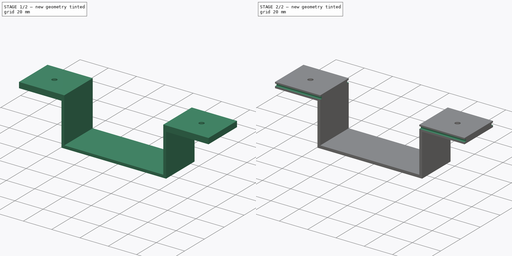
[diagram: build sequence overview — one tinted view per stage of 2, left to right]
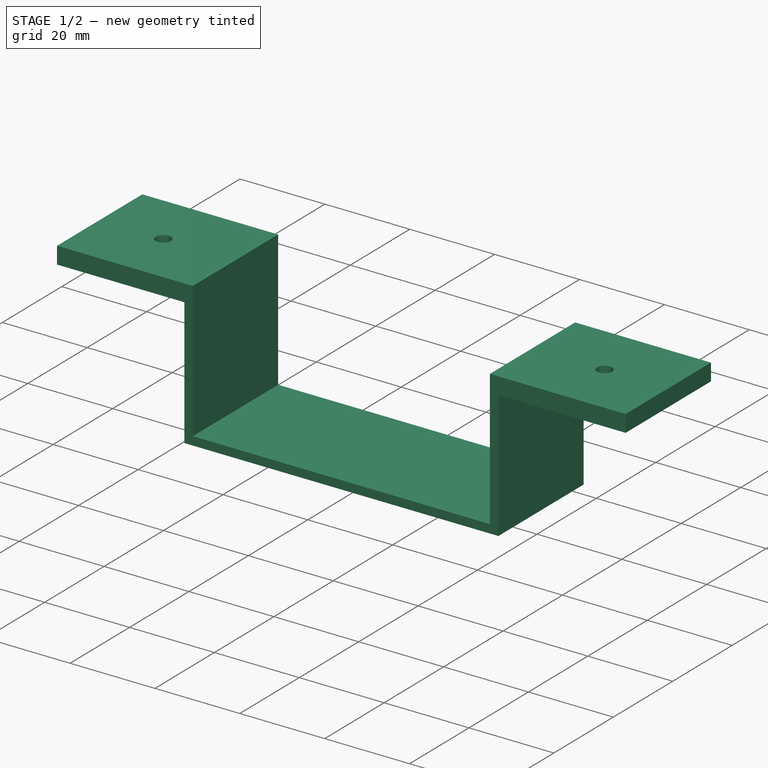
[diagram: stage 1 of 2 — iso view after this stage's code; geometry added in this stage tinted green]
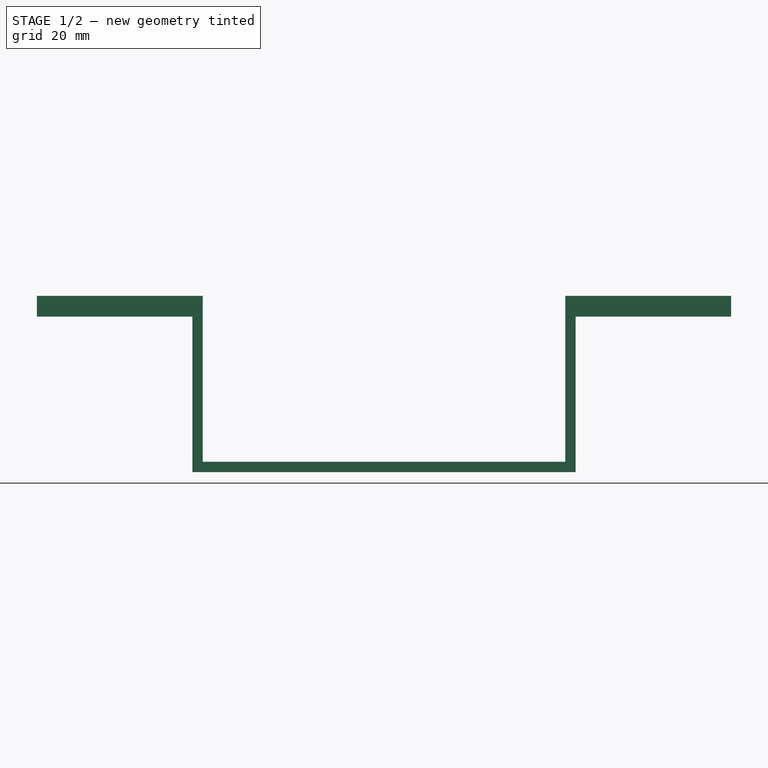
[diagram: stage 1 of 2 — front view after this stage's code; geometry added in this stage tinted green]
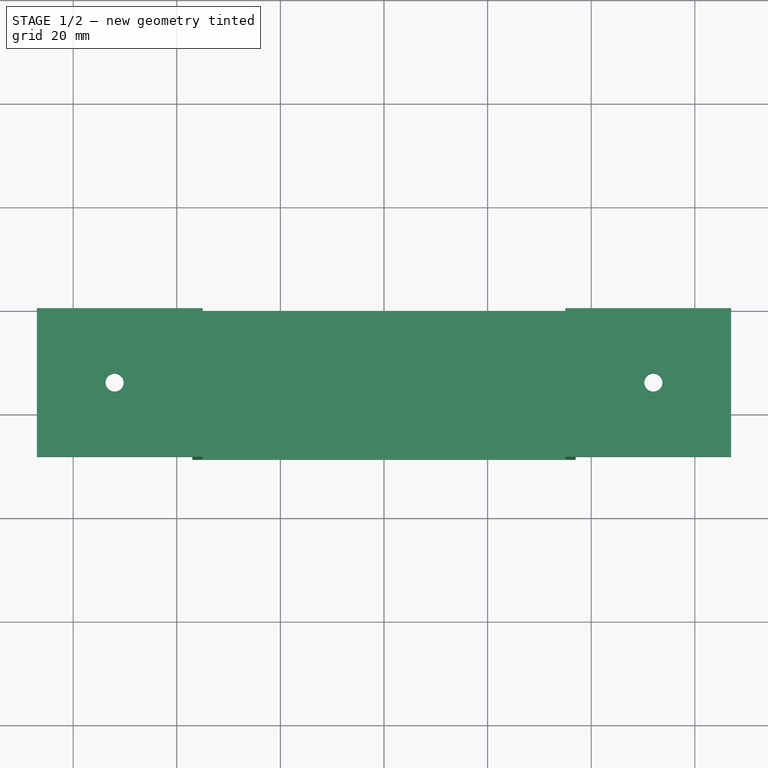
[diagram: stage 1 of 2 — top view after this stage's code; geometry added in this stage tinted green]
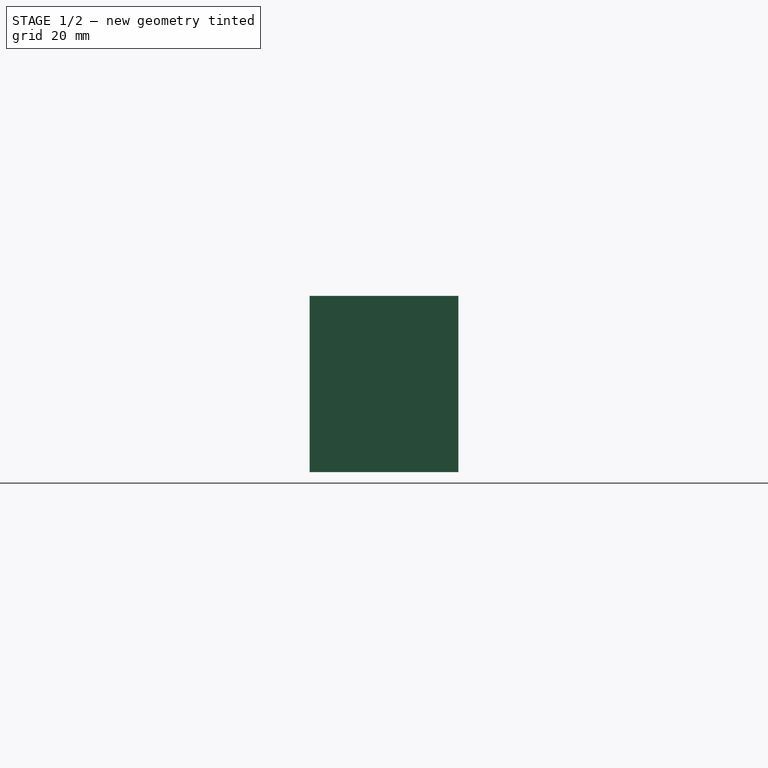
[diagram: stage 1 of 2 — right view after this stage's code; geometry added in this stage tinted green]
FCSTD DOCUMENT  (FreeCAD 1.0R39319 (Git))
Label: Temp controller bracket
License: All rights reserved
objects: Sketcher::SketchObject×3, PartDesign::Pocket×2, PartDesign::Pad×1, PartDesign::Body×1
note: 16 computed .brp shape members not serialized (recipe doc carries the construction recipe); baked Part::Feature solids carry a one-line shape summary decoded from their .brp

FEATURE [Sketcher::SketchObject] Sketch
  ArcFitTolerance = 1e-06
  AttachmentSupport = -> [XZ_Plane]
  FullyConstrained = true
  MakeInternals = false
  MapMode = 5
  Placement = pos=(0,0,0) rot=(1,0,0;1.5708rad)
  sketch-geometry (15):
    g0: LineSegment StartX=-67 StartY=0 StartZ=0 EndX=-35 EndY=0 EndZ=0
    g1: LineSegment StartX=-35 StartY=0 StartZ=0 EndX=-35 EndY=-32 EndZ=0
    g2: LineSegment StartX=-35 StartY=-32 StartZ=0 EndX=35 EndY=-32 EndZ=0
    g3: LineSegment StartX=35 StartY=-32 StartZ=0 EndX=35 EndY=0 EndZ=0
    g4: LineSegment StartX=35 StartY=0 StartZ=0 EndX=67 EndY=0 EndZ=0
    g5: LineSegment StartX=67 StartY=0 StartZ=0 EndX=67 EndY=-4 EndZ=0
    g6: LineSegment StartX=67 StartY=-4 StartZ=0 EndX=37 EndY=-4 EndZ=0
    g7: LineSegment StartX=37 StartY=-4 StartZ=0 EndX=37 EndY=-34 EndZ=0
    g8: LineSegment StartX=37 StartY=-34 StartZ=0 EndX=-37 EndY=-34 EndZ=0
    g9: LineSegment StartX=-37 StartY=-34 StartZ=0 EndX=-37 EndY=-4 EndZ=0
    g10: LineSegment StartX=-37 StartY=-4 StartZ=0 EndX=-67 EndY=-4 EndZ=0
    g11: LineSegment StartX=-67 StartY=-4 StartZ=0 EndX=-67 EndY=0 EndZ=0
    g12: LineSegment [constr] StartX=-37 StartY=-4 StartZ=0 EndX=-35 EndY=-4 EndZ=0
    g13: LineSegment [constr] StartX=37 StartY=-4 StartZ=0 EndX=35 EndY=-4 EndZ=0
    g14: LineSegment [constr] StartX=-35 StartY=-32 StartZ=0 EndX=-35 EndY=-34 EndZ=0
  constraints (44):
    c: PointOnObject(g0,g-1)
    c: PointOnObject(g0,g-1)
    c: Coincident(g0,g1)
    c: Vertical(g1)
    c: Coincident(g1,g2)
    c: Horizontal(g2)
    c: Coincident(g2,g3)
    c: Vertical(g3)
    c: Coincident(g3,g4)
    c: PointOnObject(g4,g-1)
    c: Coincident(g4,g5)
    c: Vertical(g5)
    c: Coincident(g5,g6)
    c: Horizontal(g6)
    c: Coincident(g6,g7)
    c: Vertical(g7)
    c: Coincident(g7,g8)
    c: Horizontal(g8)
    c: Coincident(g8,g9)
    c: Vertical(g9)
    c: Coincident(g9,g10)
    c: Coincident(g10,g11)
    c: Coincident(g11,g0)
    c: Horizontal(g10)
    c: Vertical(g11)
    c: Symmetric(g3,g0,g-2)
    c: Equal(g0,g4)
    c: Equal(g10,g6)
    c: Coincident(g12,g9)
    c: PointOnObject(g12,g1)
    c: Horizontal(g12)
    c: Coincident(g13,g6)
    c: PointOnObject(g13,g3)
    c: Horizontal(g13)
    c: Distance(g5) = 4
    c: Distance(g2) = 70
    c: Distance(g3) = 32
    c: Coincident(g14,g1)
    c: PointOnObject(g14,g8)
    c: Vertical(g14)
    c: Equal(g12,g14)
    c: Equal(g5,g11)
    c: Distance(g12) = 2
    c: Distance(g6) = 30
FEATURE [PartDesign::Pad] Pad
  Direction = (0,-1,2e-16)
  Length = 28.7
  Length2 = 10
  Placement = pos=(0,0,0) rot=(1,0,0;1.5708rad)
  Profile = -> Sketch
  ReferenceAxis = -> Sketch [N_Axis]
  Refine = true
  Suppressed = false
  Type = 0
FEATURE [Sketcher::SketchObject] Sketch001
  ArcFitTolerance = 1e-06
  AttachmentSupport = -> [Pad]
  ExternalGeometry = -> [Pad]
  FullyConstrained = true
  MakeInternals = false
  MapMode = 5
  Placement = pos=(0,-9e-16,-4) rot=(1,0,0;3.14159rad)
  sketch-geometry (6):
    g0: LineSegment [constr] StartX=-67 StartY=28.7 StartZ=0 EndX=-37 EndY=7e-16 EndZ=0
    g1: LineSegment [constr] StartX=-37 StartY=28.7 StartZ=0 EndX=-67 EndY=7e-16 EndZ=0
    g2: LineSegment [constr] StartX=37 StartY=28.7 StartZ=0 EndX=67 EndY=7e-16 EndZ=0
    g3: LineSegment [constr] StartX=67 StartY=28.7 StartZ=0 EndX=37 EndY=7e-16 EndZ=0
    g4: Circle CenterX=-52 CenterY=14.35 CenterZ=0 NormalX=0 NormalY=0 NormalZ=1 AngleXU=0 Radius=1.75
    g5: Circle CenterX=52 CenterY=14.35 CenterZ=0 NormalX=0 NormalY=0 NormalZ=1 AngleXU=0 Radius=1.75
  constraints (14):
    c: Coincident(g0,g-5)
    c: Coincident(g0,g-6)
    c: Coincident(g1,g-5)
    c: Coincident(g1,g-6)
    c: Coincident(g2,g-3)
    c: Coincident(g2,g-4)
    c: Coincident(g3,g-3)
    c: Coincident(g3,g-4)
    c: Equal(g5,g4)
    c: Diameter(g5) = 3.5
    c: PointOnObject(g5,g2)
    c: PointOnObject(g5,g3)
    c: PointOnObject(g4,g1)
    c: PointOnObject(g4,g0)
FEATURE [PartDesign::Pocket] Pocket
  BaseFeature = -> Pad
  Direction = (0,0,1)
  Length = 5
  Length2 = 5
  Placement = pos=(0,0,0) rot=(1,0,0;1.5708rad)
  Profile = -> Sketch001
  ReferenceAxis = -> Sketch001 [N_Axis]
  Refine = true
  Suppressed = false
  Type = 1
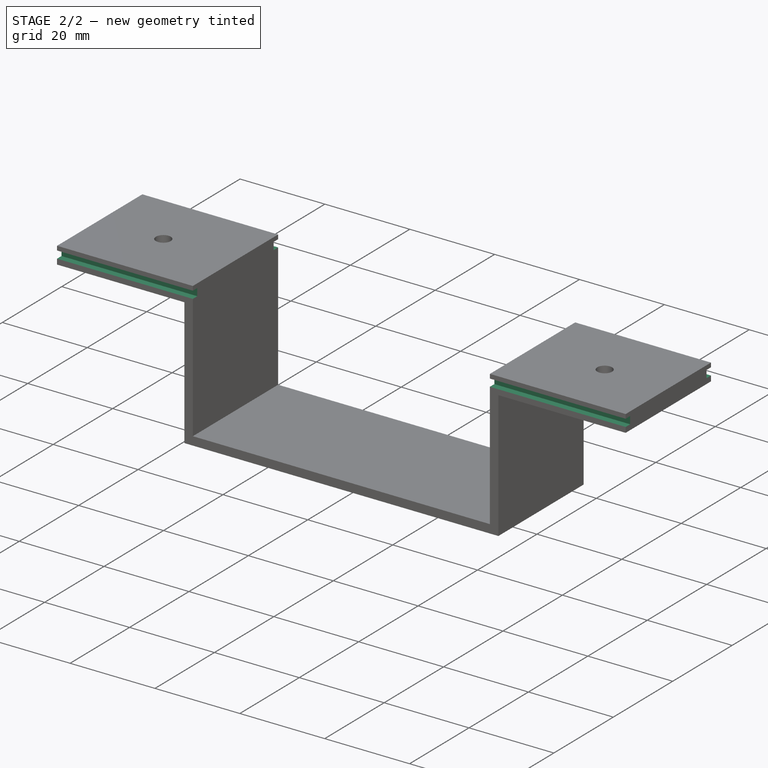
[diagram: stage 2 of 2 — iso view after this stage's code; geometry added in this stage tinted green]
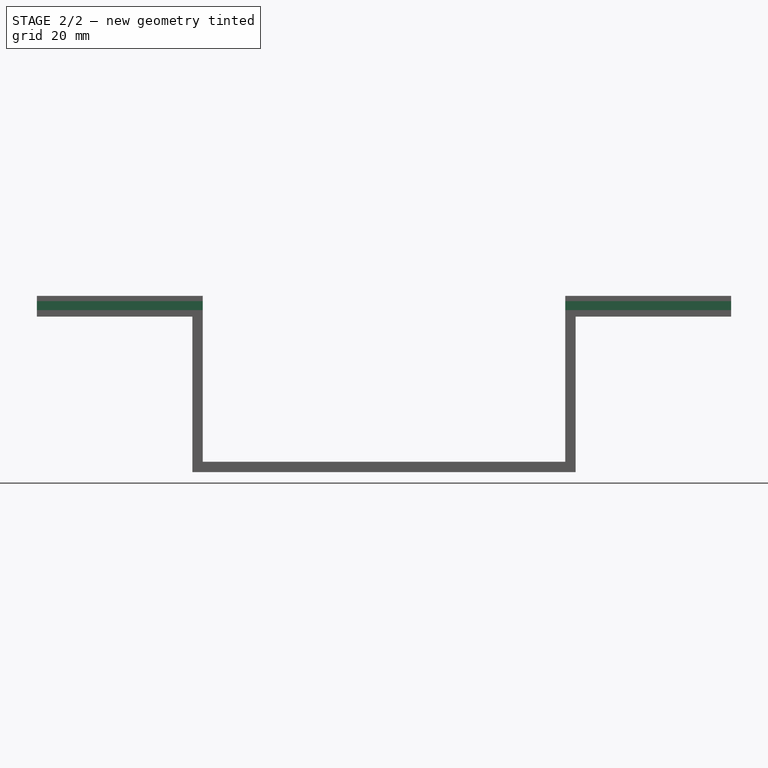
[diagram: stage 2 of 2 — front view after this stage's code; geometry added in this stage tinted green]
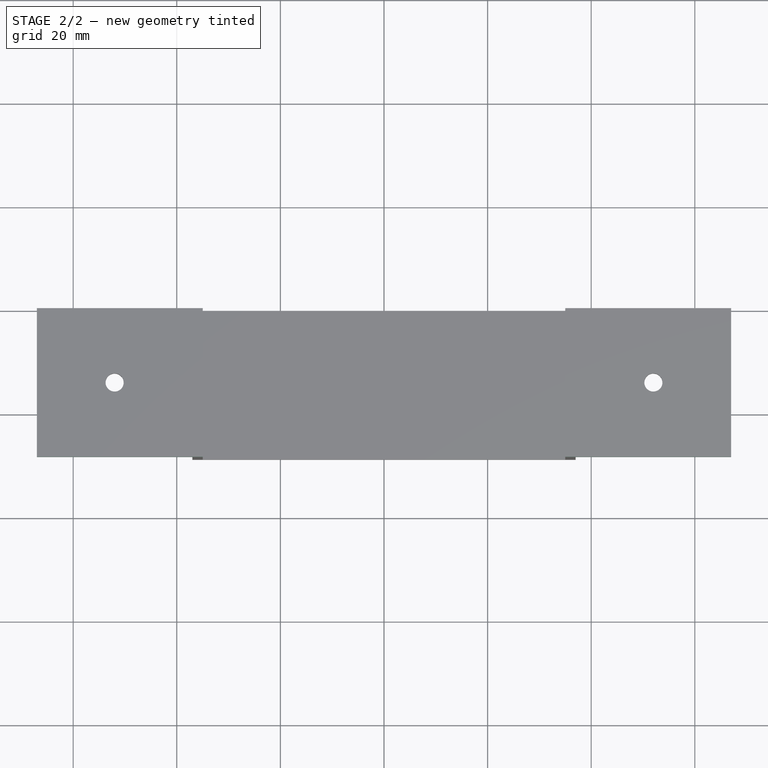
[diagram: stage 2 of 2 — top view after this stage's code; geometry added in this stage tinted green]
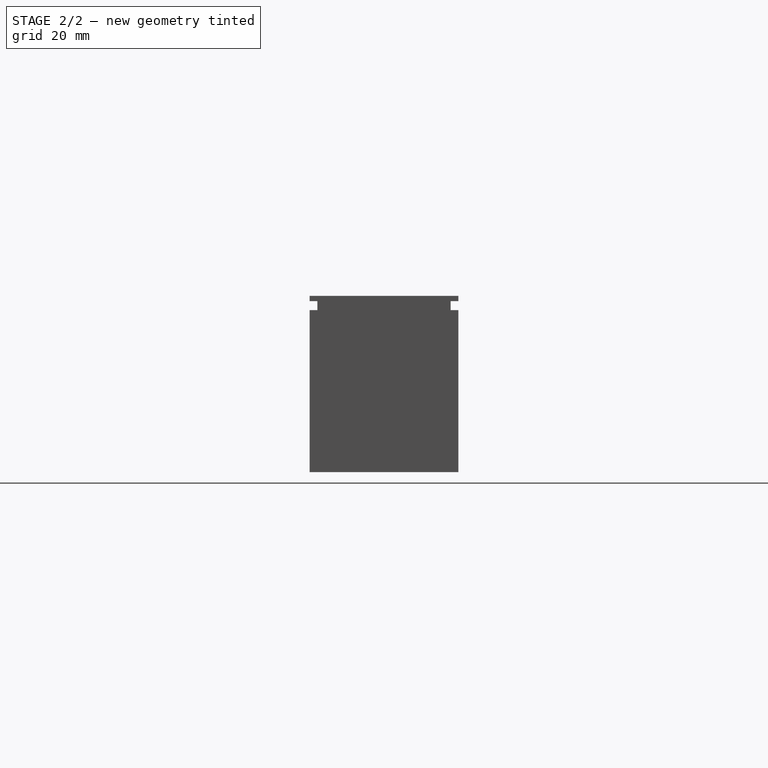
[diagram: stage 2 of 2 — right view after this stage's code; geometry added in this stage tinted green]
FEATURE [Sketcher::SketchObject] Sketch002
  ArcFitTolerance = 1e-06
  AttachmentSupport = -> [Pocket]
  ExternalGeometry = -> [Pocket]
  FullyConstrained = true
  MakeInternals = false
  MapMode = 5
  Placement = pos=(67,0,0) rot=(0.707107,0,0.707107;3.14159rad)
  sketch-geometry (8):
    g0: LineSegment StartX=-2.75 StartY=28.7 StartZ=0 EndX=-2.75 EndY=27.2 EndZ=0
    g1: LineSegment StartX=-2.75 StartY=27.2 StartZ=0 EndX=-1 EndY=27.2 EndZ=0
    g2: LineSegment StartX=-1 StartY=27.2 StartZ=0 EndX=-1 EndY=28.7 EndZ=0
    g3: LineSegment StartX=-1 StartY=28.7 StartZ=0 EndX=-2.75 EndY=28.7 EndZ=0
    g4: LineSegment StartX=-2.75 StartY=7e-16 StartZ=0 EndX=-1 EndY=7e-16 EndZ=0
    g5: LineSegment StartX=-1 StartY=7e-16 StartZ=0 EndX=-1 EndY=1.5 EndZ=0
    g6: LineSegment StartX=-1 StartY=1.5 StartZ=0 EndX=-2.75 EndY=1.5 EndZ=0
    g7: LineSegment StartX=-2.75 StartY=1.5 StartZ=0 EndX=-2.75 EndY=7e-16 EndZ=0
  constraints (24):
    c: Coincident(g0,g1)
    c: Coincident(g1,g2)
    c: Coincident(g2,g3)
    c: Coincident(g3,g0)
    c: Vertical(g0)
    c: Vertical(g2)
    c: Horizontal(g1)
    c: Horizontal(g3)
    c: PointOnObject(g0,g-3)
    c: Coincident(g4,g5)
    c: Coincident(g5,g6)
    c: Coincident(g6,g7)
    c: Coincident(g7,g4)
    c: Horizontal(g4)
    c: Horizontal(g6)
    c: Vertical(g5)
    c: Vertical(g7)
    c: PointOnObject(g4,g-4)
    c: Vertical(g0,g6)
    c: Equal(g1,g6)
    c: Equal(g7,g0)
    c: Distance(g7) = 1.5
    c: Distance(g4) = 1.75
    c: Distance(g-4,g4) = 1.25
FEATURE [PartDesign::Pocket] Pocket001
  BaseFeature = -> Pocket
  Direction = (-1,0,2e-16)
  Length = 5
  Length2 = 5
  Placement = pos=(0,0,0) rot=(1,0,0;1.5708rad)
  Profile = -> Sketch002
  ReferenceAxis = -> Sketch002 [N_Axis]
  Refine = true
  Suppressed = false
  Type = 1
FEATURE [PartDesign::Body] Body
  AllowCompound = false
  Group = -> [Sketch,Pad,Sketch001,Pocket,Sketch002,Pocket001]
  Origin = -> Origin
  Tip = -> Pocket001
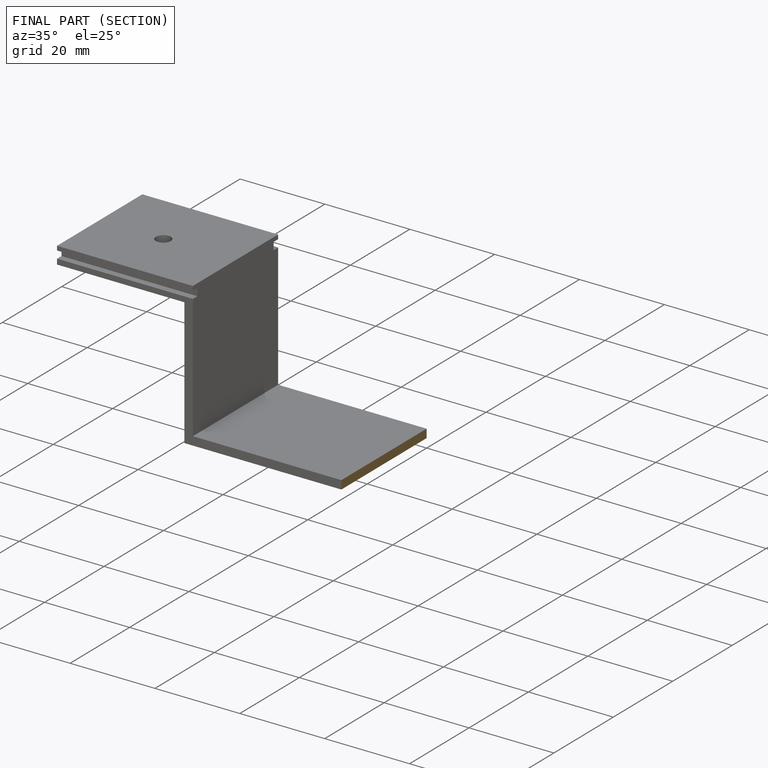
[diagram: finished part — half-section view (interior)]
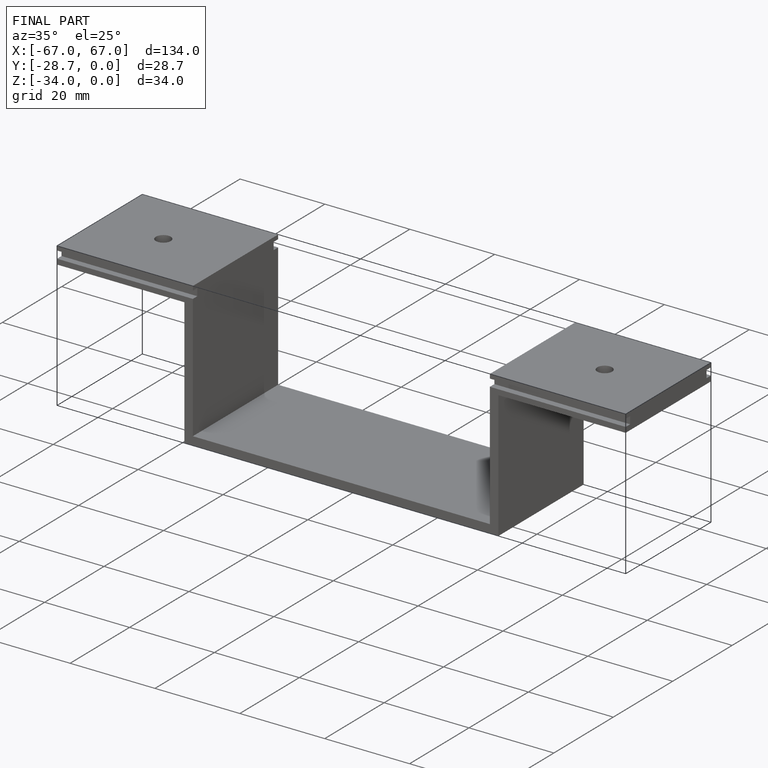
[diagram: finished part — iso view with bounding-box wireframe]
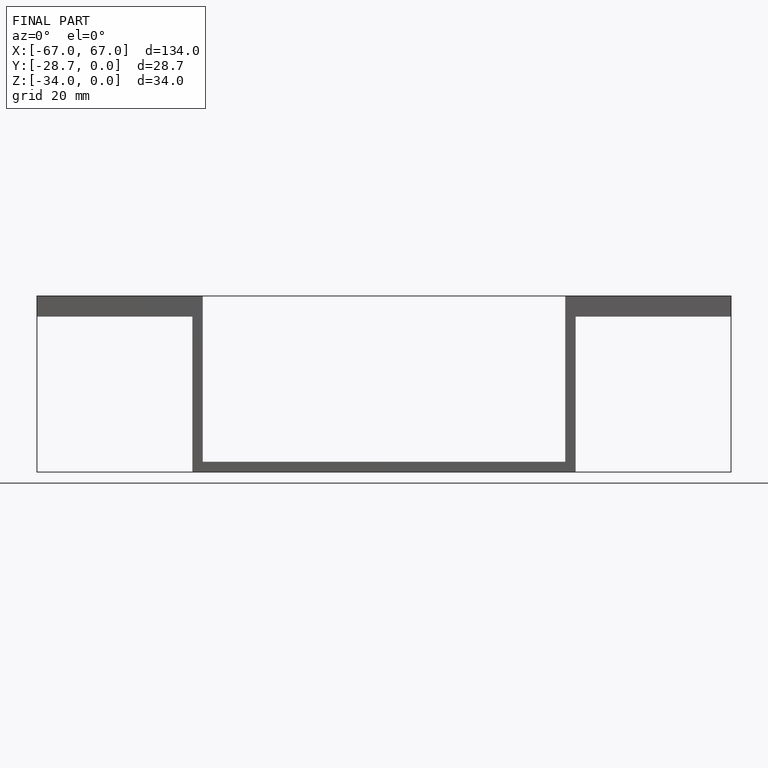
[diagram: finished part — front view with bounding-box wireframe]
